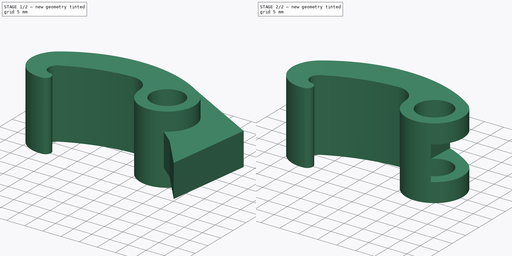
[diagram: build sequence overview — one tinted view per stage of 2, left to right]
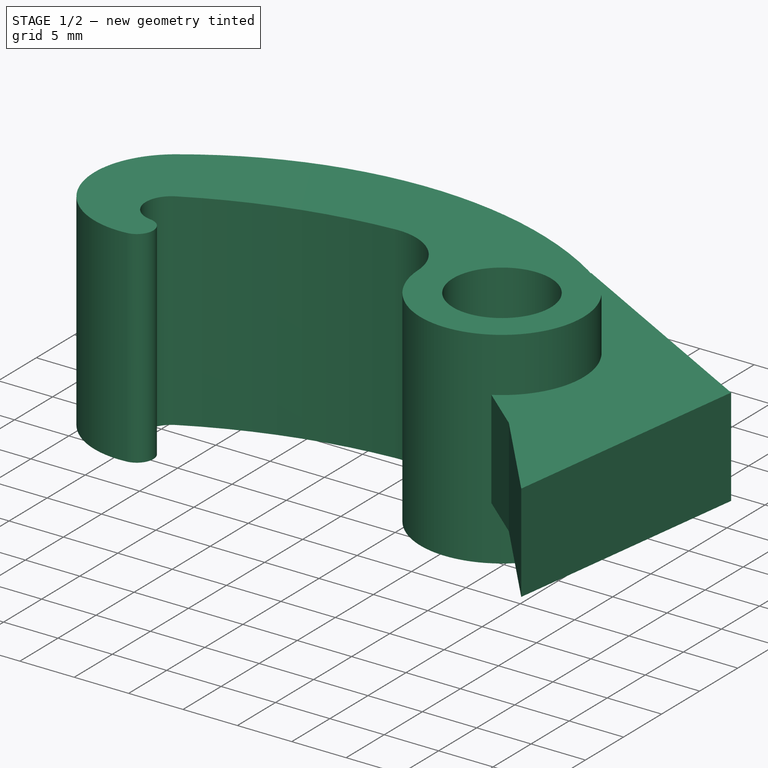
[diagram: stage 1 of 2 — iso view after this stage's code; geometry added in this stage tinted green]
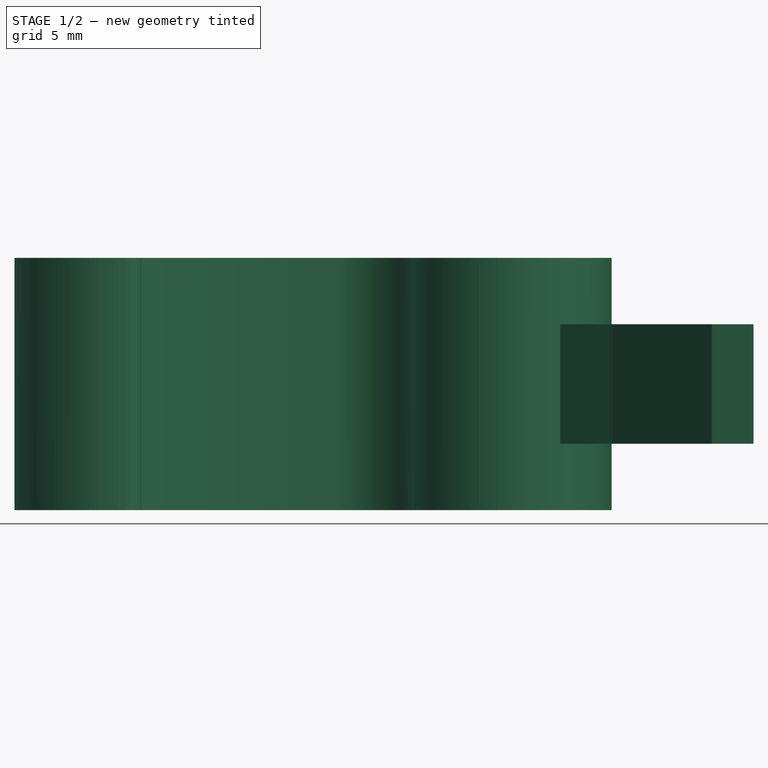
[diagram: stage 1 of 2 — front view after this stage's code; geometry added in this stage tinted green]
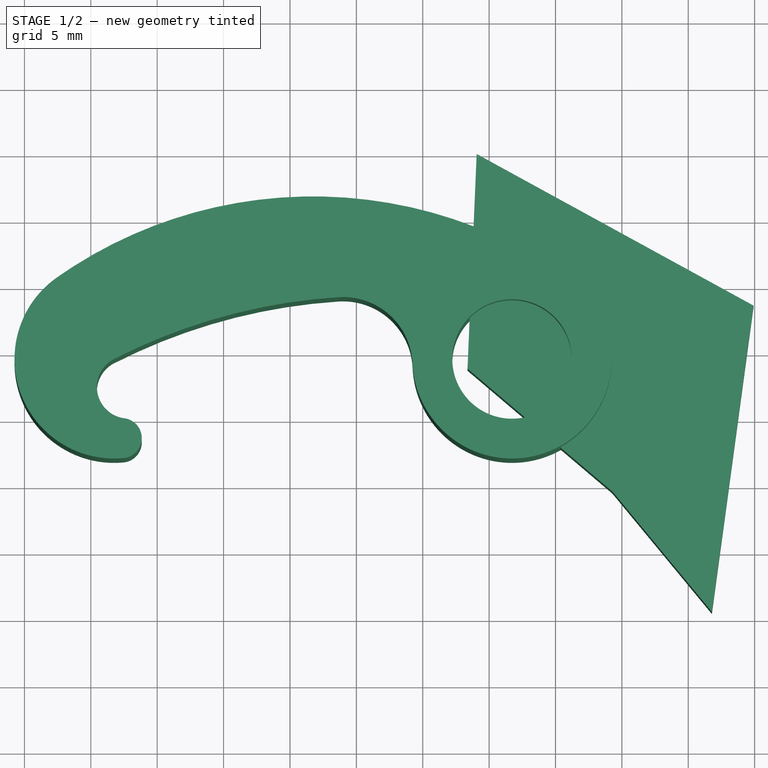
[diagram: stage 1 of 2 — top view after this stage's code; geometry added in this stage tinted green]
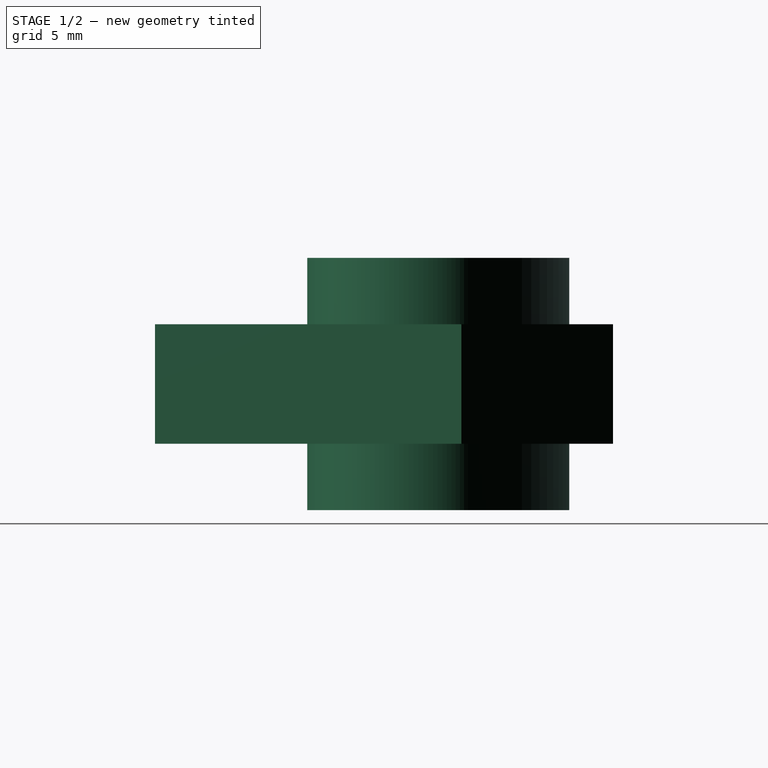
[diagram: stage 1 of 2 — right view after this stage's code; geometry added in this stage tinted green]
FCSTD DOCUMENT  (FreeCAD 0.14R3702 (Git))
Label: part
License: CC-BY 3.0
LicenseURL: http://creativecommons.org/licenses/by/3.0/
objects: Sketcher::SketchObject×2, PartDesign::Pad×2, Part::Cut×1
note: 7 computed .brp shape members not serialized (recipe doc carries the construction recipe); baked Part::Feature solids carry a one-line shape summary decoded from their .brp

FEATURE [Sketcher::SketchObject] Sketch
  sketch-geometry (8):
    g0: Circle CenterX=16.7258 CenterY=-0.576927 CenterZ=0 NormalX=0 NormalY=0 NormalZ=1 Radius=4.5
    g1: ArcOfCircle CenterX=1.73939 CenterY=-21.8664 CenterZ=0 NormalX=0 NormalY=0 NormalZ=1 Radius=33.5353 StartAngle=0.957435 EndAngle=2.18416
    g2: ArcOfCircle CenterX=3.99035 CenterY=-1.15921 CenterZ=0 NormalX=0 NormalY=0 NormalZ=1 Radius=5.24876 StartAngle=0.0456897 EndAngle=1.63529
    g3: ArcOfCircle CenterX=-12.1655 CenterY=-2.68948 CenterZ=0 NormalX=0 NormalY=0 NormalZ=1 Radius=2.37329 StartAngle=2.04395 EndAngle=4.58189
    g4: ArcOfCircle CenterX=-12.6708 CenterY=-6.53945 CenterZ=0 NormalX=0 NormalY=0 NormalZ=1 Radius=1.5097 StartAngle=4.80873 EndAngle=7.72348
    g5: ArcOfCircle CenterX=-13.247 CenterY=-0.576927 CenterZ=0 NormalX=0 NormalY=0 NormalZ=1 Radius=7.5 StartAngle=2.18416 EndAngle=4.80873
    g6: ArcOfCircle CenterX=16.7258 CenterY=-0.576927 CenterZ=0 NormalX=0 NormalY=0 NormalZ=1 Radius=7.5 StartAngle=3.18728 EndAngle=7.24062
    g7: ArcOfCircle CenterX=6.43603 CenterY=-39.0253 CenterZ=0 NormalX=0 NormalY=0 NormalZ=1 Radius=43.1938 StartAngle=1.63529 EndAngle=2.04395
  constraints (24):
    c: Radius(g0) = 4.5
    c: Coincident(g4,g3)
    c: Tangent(g4,g3)
    c: Distance(g4,g4) = 3
    c: Coincident(g5,g1)
    c: Coincident(g5,g4)
    c: Radius(g5) = 7.5
    c: Tangent(g4,g5)
    c: Tangent(g5,g1)
    c: Coincident(g6,g1)
    c: Coincident(g6,g2)
    c: Radius(g6) = 7.5
    c: Tangent(g1,g6)
    c: Tangent(g6,g2)
    c: DistanceY(g0,g6) = 0
    c: DistanceX(g0,g6) = 0
    c: DistanceX(g3,g5) = 0
    c: Coincident(g7,g3)
    c: Tangent(g7,g3)
    c: PointOnObject(g7,g2)
    c: PointOnObject(g2,g7)
    c: Tangent(g7,g2)
    c: DistanceY(g5,g0) = 0
    c: DistanceY(g3,g5) = 0
FEATURE [PartDesign::Pad] Pad
  Length = 19
  Length2 = 100
  Sketch = -> Sketch
  Type = 0
FEATURE [Sketcher::SketchObject] Sketch001
  Placement = pos=(0,0,5) rot=(0,0,1;0rad)
  sketch-geometry (5):
    g0: LineSegment StartX=14.0614 StartY=14.9513 StartZ=0 EndX=13.3725 EndY=-1.22221 EndZ=0
    g1: LineSegment StartX=13.3725 StartY=-1.22221 StartZ=0 EndX=24.2946 EndY=-10.4858 EndZ=0
    g2: LineSegment StartX=24.2946 StartY=-10.4858 StartZ=0 EndX=31.7794 EndY=-19.5456 EndZ=0
    g3: LineSegment StartX=31.7794 StartY=-19.5456 StartZ=0 EndX=34.911 EndY=3.53453 EndZ=0
    g4: LineSegment StartX=34.911 StartY=3.53453 StartZ=0 EndX=14.0614 EndY=14.9513 EndZ=0
  constraints (6):
    c: Coincident(g0,g1)
    c: Coincident(g1,g2)
    c: Coincident(g2,g3)
    c: Coincident(g3,g4)
    c: DistanceX(g0,g4) = 0
    c: DistanceY(g4,g0) = 0
FEATURE [PartDesign::Pad] Pad001
  Length = 9
  Length2 = 100
  Placement = pos=(0,0,5) rot=(0,0,1;0rad)
  Sketch = -> Sketch001
  Type = 0
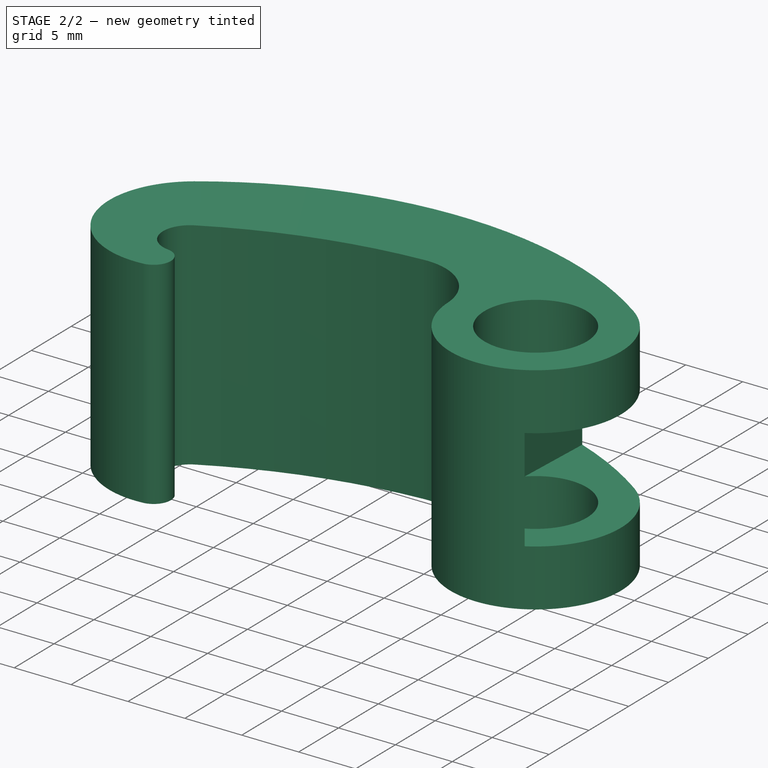
[diagram: stage 2 of 2 — iso view after this stage's code; geometry added in this stage tinted green]
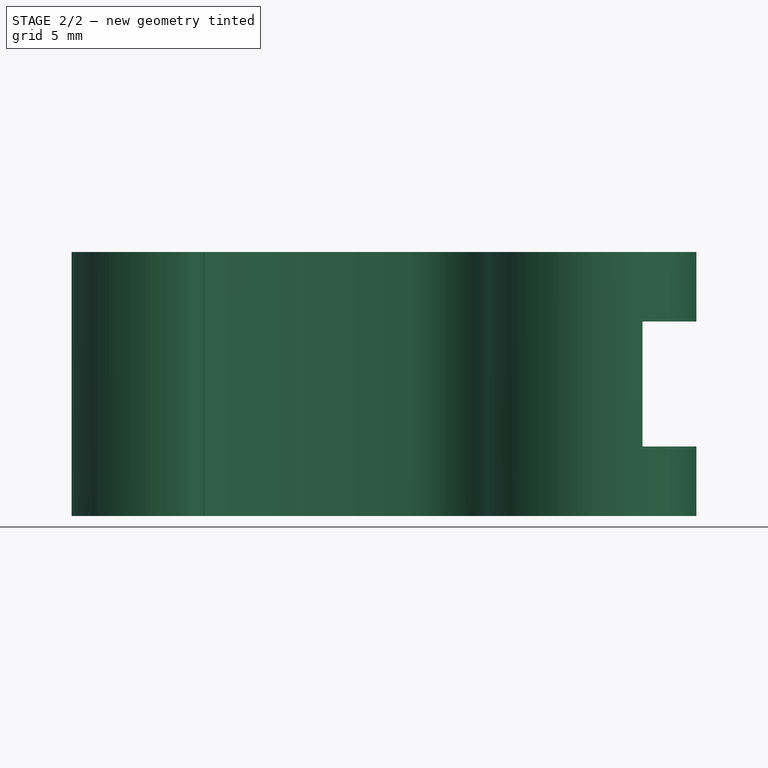
[diagram: stage 2 of 2 — front view after this stage's code; geometry added in this stage tinted green]
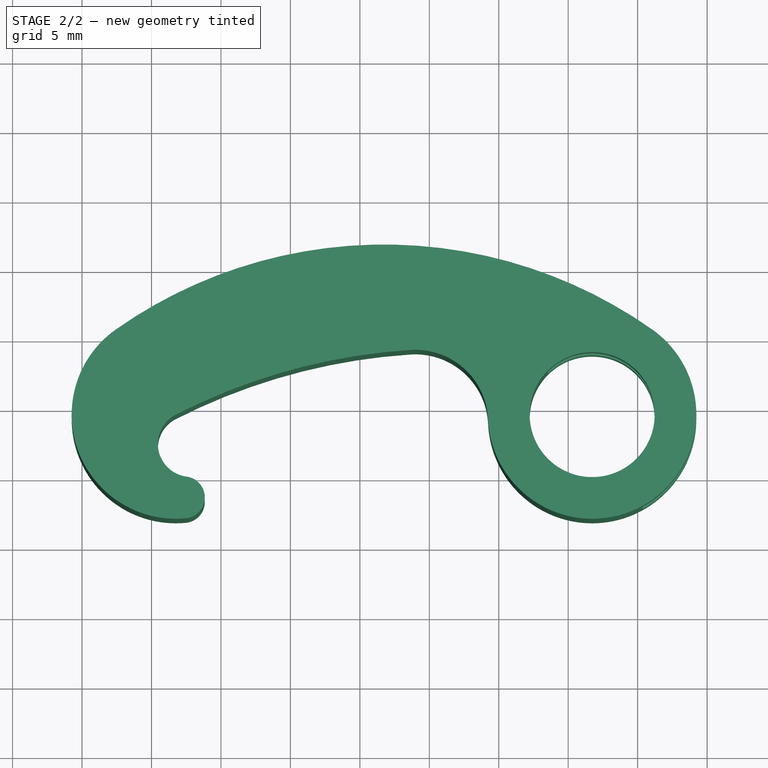
[diagram: stage 2 of 2 — top view after this stage's code; geometry added in this stage tinted green]
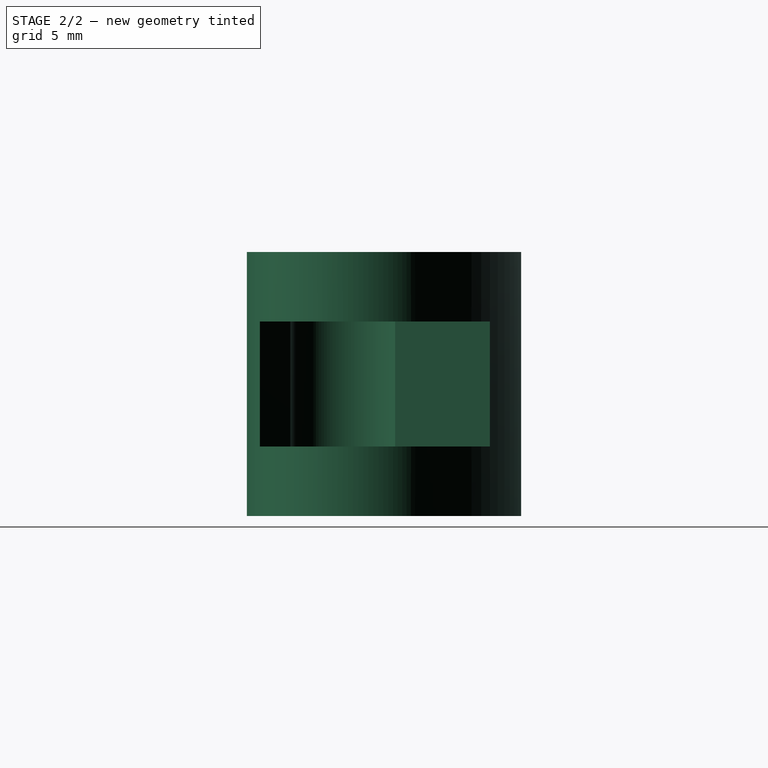
[diagram: stage 2 of 2 — right view after this stage's code; geometry added in this stage tinted green]
FEATURE [Part::Cut] Cut
  Base = -> Pad
  Tool = -> Pad001
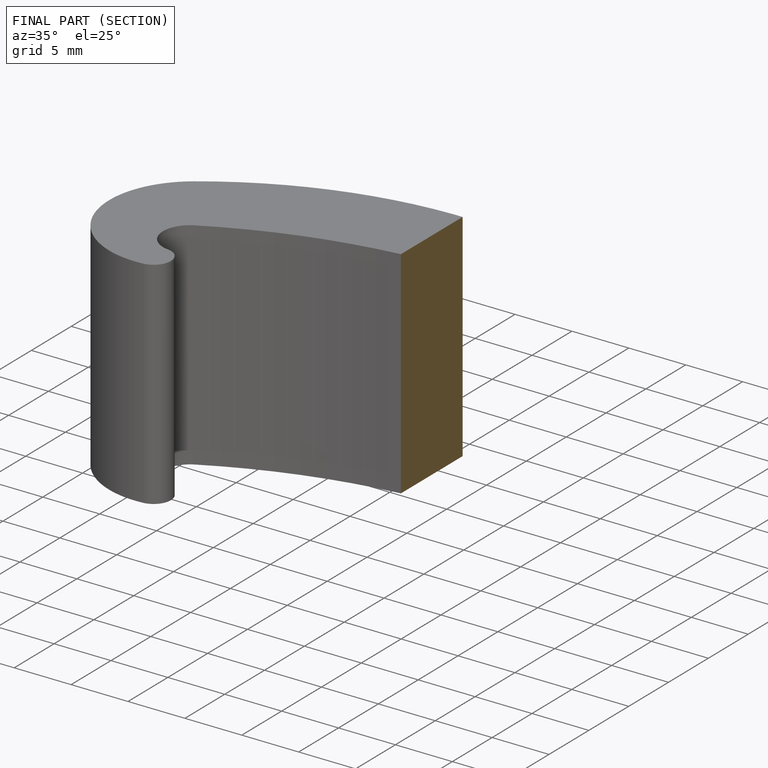
[diagram: finished part — half-section view (interior)]
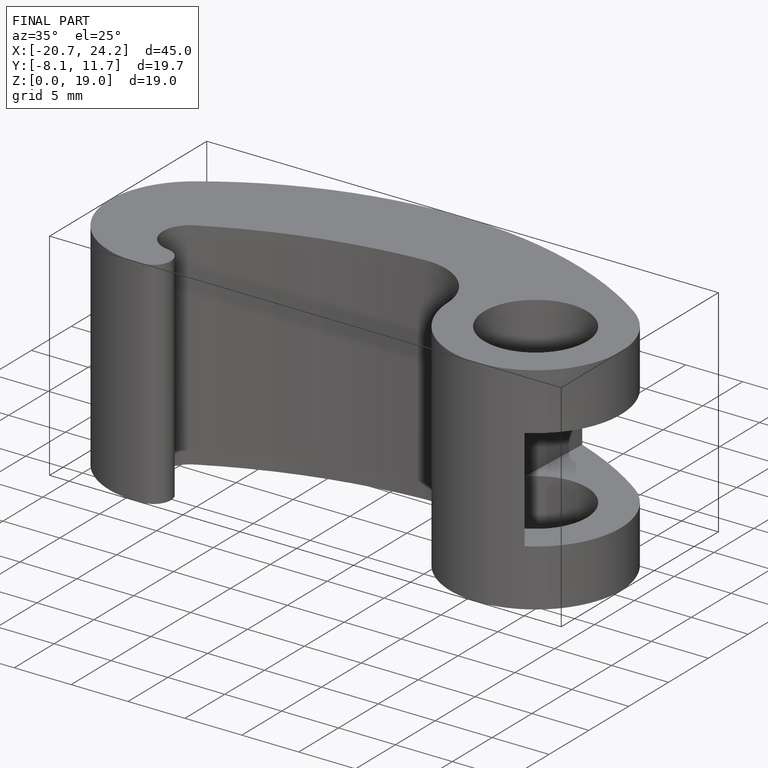
[diagram: finished part — iso view with bounding-box wireframe]
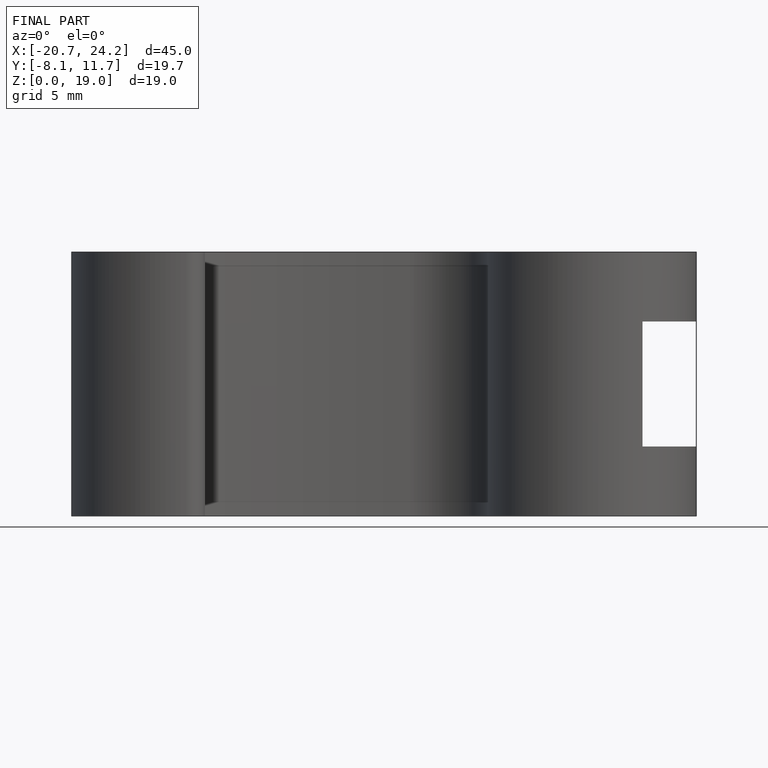
[diagram: finished part — front view with bounding-box wireframe]
